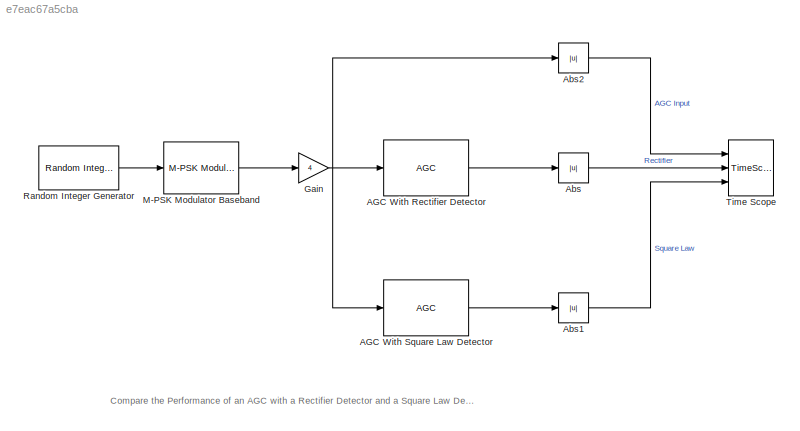
MODEL slx_e7eac67a5cba
KIND model
BLOCK [Reference] AGC With Rectifier Detector  REF=commrfcorlib/AGC
  DetectorMethod = Rectifier
  GainOutputPort = off
  LoopMethod = Linear
  MaximumGain = 30
  Ports = [1, 1]
  SimulateUsing = Code generation
  SourceBlock = commrfcorlib/AGC
  SourceType = AGC
  StepSize = 0.1
  UpdatePeriod = 10
BLOCK [Reference] AGC With Square Law Detector  REF=commrfcorlib/AGC
  DetectorMethod = Square Law
  GainOutputPort = off
  LoopMethod = Linear
  MaximumGain = 30
  Ports = [1, 1]
  SimulateUsing = Code generation
  SourceBlock = commrfcorlib/AGC
  SourceType = AGC
  StepSize = 0.1
  UpdatePeriod = 10
BLOCK [Abs] Abs
  SaturateOnIntegerOverflow = off
BLOCK [Abs] Abs1
  SaturateOnIntegerOverflow = off
BLOCK [Abs] Abs2
  SaturateOnIntegerOverflow = off
BLOCK [Gain] Gain
  Gain = 4
  OutDataTypeStr = Inherit: Inherit via internal rule
  ParamDataTypeStr = Inherit: Inherit via internal rule
  SaturateOnIntegerOverflow = off
BLOCK [Reference] M-PSK Modulator Baseband  REF=commdigbbndpm3/M-PSK
Modulator
Baseband
  Enc = Gray
  InType = Integer
  M = 4
  Mapping = [0:7]
  Ph = pi/4
  Ports = [1, 1]
  SourceBlock = commdigbbndpm3/M-PSK\nModulator\nBaseband
  SourceType = M-PSK Modulator Baseband
  outDtype = double
  outFracLen = 15
  outFracLenMode = Best precision
  outUDDataType = sfix(16)
  outWordLen = 16
BLOCK [Reference] Random Integer Generator  REF=commrandsrc2/Random Integer
Generator
  Ports = [0, 1]
  SourceBlock = commrandsrc2/Random Integer\nGenerator
  SourceType = Random Integer Generator
  Ts = 1
  frameBased = on
  mul = 4
  orient = off
  outDataType = double
  sampPerFrame = 100
  seed = 37
BLOCK [TimeScope] Time Scope
  DefaultConfigurationName = spbscopes.TimeScopeBlockCfg
  NumInputPorts = 3
  Ports = [3]
ANNOTATION (root): Compare the Performance of an AGC with a Rectifier Detector and a Square Law Detector
LINE AGC With Rectifier Detector:1 -> Abs:1
LINE AGC With Square Law Detector:1 -> Abs1:1
LINE Abs1:1 -> Time Scope:3
LINE Abs2:1 -> Time Scope:1
LINE Abs:1 -> Time Scope:2
NET Gain:1 -> AGC With Rectifier Detector:1, AGC With Square Law Detector:1, Abs2:1
LINE M-PSK Modulator Baseband:1 -> Gain:1
LINE Random Integer Generator:1 -> M-PSK Modulator Baseband:1
note: NET lines group one-source signal fan-out (src -> all destinations, sorted); 1:1 wires keep LINE
